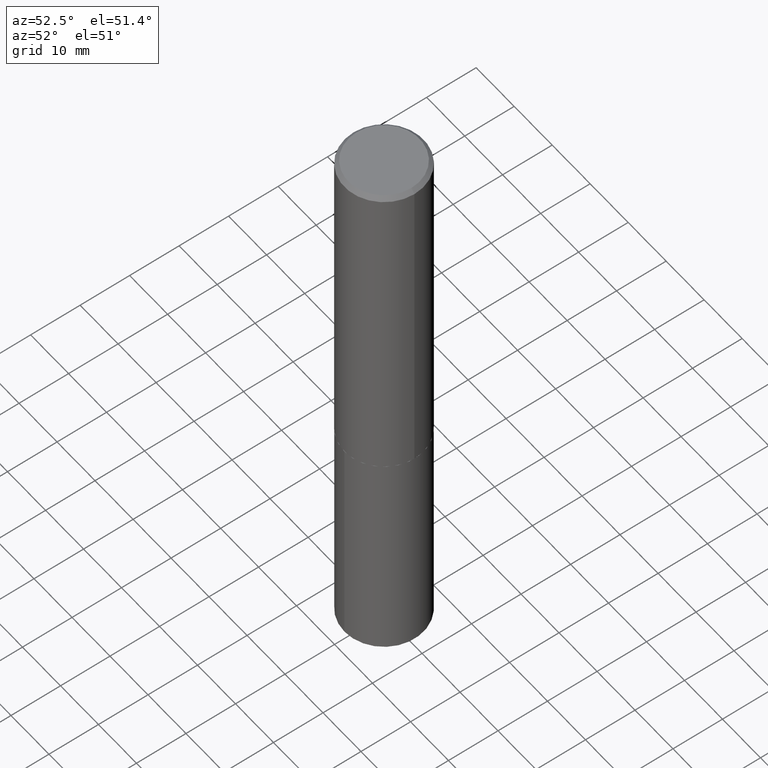
[diagram: clean part render]
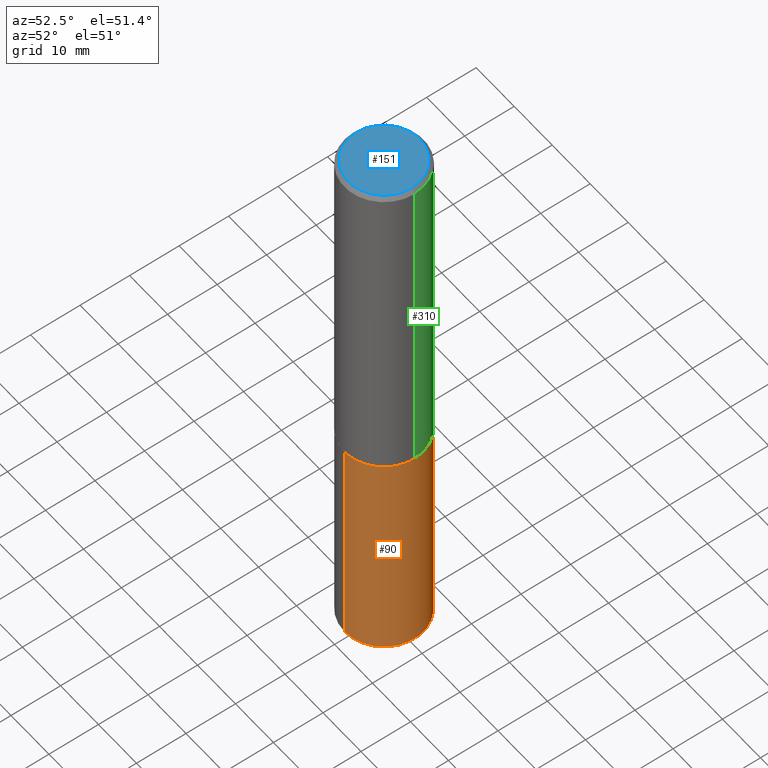
[diagram: same view with three faces highlighted in distinct colors, each labeled with its STEP entity id]
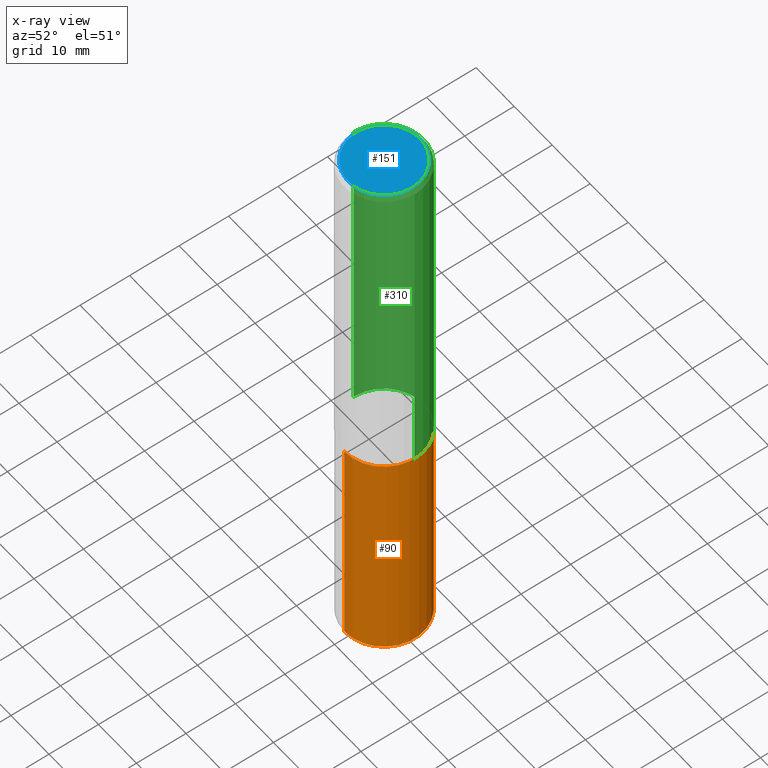
[diagram: x-ray of the same camera — body ghosted, the three highlighted faces saturated]
A machine part, auxiliary view with three faces highlighted in distinct colors.
The next image is the same camera in x-ray (body ghosted, the three faces saturated) — at least one of them is partly hidden behind the body in this view.
Their STEP definitions:

[orange] entity #90 — the highlighted cylindrical surface (partial cylindrical patch) has radius 7.9997 mm, axis along (-0, 0, 1).
#33 = VERTEX_POINT ( 'NONE', #100 ) ;
#34 = CIRCLE ( 'NONE', #84, 0.3149500000000000077 ) ;
#50 = LINE ( 'NONE', #271, #287 ) ;
#59 = ORIENTED_EDGE ( 'NONE', *, *, #268, .F. ) ;
#71 = DIRECTION ( 'NONE',  ( -6.982962677686265922E-15, -1.000000000000000000, 3.469564049740292770E-15 ) ) ;
#73 = DIRECTION ( 'NONE',  ( -6.982962677686265922E-15, -1.000000000000000000, 3.469564049740292770E-15 ) ) ;
#76 = FACE_OUTER_BOUND ( 'NONE', #258, .T. ) ;
#78 = CARTESIAN_POINT ( 'NONE',  ( 2.237854346276523548E-15, 0.3149499999999842426, -4.527600000000001401 ) ) ;
#84 = AXIS2_PLACEMENT_3D ( 'NONE', #184, #231, #354 ) ;
#85 = LINE ( 'NONE', #216, #97 ) ;
#90 = ADVANCED_FACE ( 'NONE', ( #76 ), #158, .T. ) ;
#97 = VECTOR ( 'NONE', #194, 39.37007874015748143 ) ;
#99 = ORIENTED_EDGE ( 'NONE', *, *, #214, .F. ) ;
#100 = CARTESIAN_POINT ( 'NONE',  ( -2.199284095337223212E-15, -0.3149500000000094446, -2.706599999999998563 ) ) ;
#118 = VERTEX_POINT ( 'NONE', #233 ) ;
#122 = ORIENTED_EDGE ( 'NONE', *, *, #240, .T. ) ;
#157 = DIRECTION ( 'NONE',  ( -2.444512680604651290E-29, 3.492850565093688912E-15, 1.000000000000000000 ) ) ;
#158 = CYLINDRICAL_SURFACE ( 'NONE', #209, 0.3149500000000000077 ) ;
#179 = AXIS2_PLACEMENT_3D ( 'NONE', #328, #269, #73 ) ;
#184 = CARTESIAN_POINT ( 'NONE',  ( 6.618905870820689755E-29, -9.450043391712855461E-15, -2.706599999999999451 ) ) ;
#186 = CARTESIAN_POINT ( 'NONE',  ( 6.618905870820689755E-29, -9.450043391712855461E-15, -2.706599999999999451 ) ) ;
#192 = EDGE_CURVE ( 'NONE', #118, #290, #279, .T. ) ;
#194 = DIRECTION ( 'NONE',  ( -2.444512680604651010E-29, 3.492850565093688518E-15, 1.000000000000000000 ) ) ;
#209 = AXIS2_PLACEMENT_3D ( 'NONE', #186, #157, #71 ) ;
#214 = EDGE_CURVE ( 'NONE', #33, #259, #34, .T. ) ;
#216 = CARTESIAN_POINT ( 'NONE',  ( 2.237854346276501066E-15, 0.3149499999999905708, -2.706600000000000783 ) ) ;
#231 = DIRECTION ( 'NONE',  ( -2.444512680604651290E-29, 3.492850565093688912E-15, 1.000000000000000000 ) ) ;
#233 = CARTESIAN_POINT ( 'NONE',  ( -2.199284095337178641E-15, -0.3149500000000157729, -4.527599999999999625 ) ) ;
#240 = EDGE_CURVE ( 'NONE', #290, #259, #85, .T. ) ;
#258 = EDGE_LOOP ( 'NONE', ( #293, #122, #99, #59 ) ) ;
#259 = VERTEX_POINT ( 'NONE', #363 ) ;
#268 = EDGE_CURVE ( 'NONE', #118, #33, #50, .T. ) ;
#269 = DIRECTION ( 'NONE',  ( -2.444512680604651290E-29, 3.492850565093688912E-15, 1.000000000000000000 ) ) ;
#271 = CARTESIAN_POINT ( 'NONE',  ( -2.199284095337223212E-15, -0.3149500000000094446, -2.706599999999998563 ) ) ;
#279 = CIRCLE ( 'NONE', #179, 0.3149500000000000077 ) ;
#287 = VECTOR ( 'NONE', #338, 39.37007874015748143 ) ;
#290 = VERTEX_POINT ( 'NONE', #78 ) ;
#293 = ORIENTED_EDGE ( 'NONE', *, *, #192, .T. ) ;
#328 = CARTESIAN_POINT ( 'NONE',  ( 1.107036346220176247E-28, -1.581052427074846768E-14, -4.527600000000000513 ) ) ;
#338 = DIRECTION ( 'NONE',  ( -2.444512680604651010E-29, 3.492850565093688518E-15, 1.000000000000000000 ) ) ;
#354 = DIRECTION ( 'NONE',  ( -6.982962677686265922E-15, -1.000000000000000000, 3.469564049740292770E-15 ) ) ;
#363 = CARTESIAN_POINT ( 'NONE',  ( 2.237854346276545636E-15, 0.3149499999999905708, -2.706600000000000783 ) ) ;

[blue] entity #151 — the highlighted planar face has unit normal (0, -0, -1).
#5 = AXIS2_PLACEMENT_3D ( 'NONE', #272, #296, #136 ) ;
#31 = EDGE_CURVE ( 'NONE', #225, #232, #196, .T. ) ;
#46 = DIRECTION ( 'NONE',  ( -2.445468806185136597E-29, 3.491481338843145583E-15, 1.000000000000000000 ) ) ;
#74 = CARTESIAN_POINT ( 'NONE',  ( -1.178467787315321149E-46, 1.682539673960460649E-32, 4.818985154644839761E-18 ) ) ;
#103 = DIRECTION ( 'NONE',  ( 1.000000000000000000, -6.982962677686267499E-15, 4.876309930827607477E-29 ) ) ;
#113 = AXIS2_PLACEMENT_3D ( 'NONE', #74, #46, #103 ) ;
#132 = EDGE_CURVE ( 'NONE', #232, #225, #252, .T. ) ;
#136 = DIRECTION ( 'NONE',  ( 1.000000000000000000, -6.982962677686267499E-15, 4.876309930827607477E-29 ) ) ;
#141 = CARTESIAN_POINT ( 'NONE',  ( -0.2837000000000000077, 2.035620907579017403E-15, 4.818985154630794339E-18 ) ) ;
#151 = ADVANCED_FACE ( 'NONE', ( #161 ), #241, .F. ) ;
#161 = FACE_OUTER_BOUND ( 'NONE', #283, .T. ) ;
#174 = ORIENTED_EDGE ( 'NONE', *, *, #132, .T. ) ;
#191 = CARTESIAN_POINT ( 'NONE',  ( 0.2837000000000000077, -2.108072959102388127E-15, 4.818985154659137865E-18 ) ) ;
#196 = CIRCLE ( 'NONE', #5, 0.2837000000000000077 ) ;
#225 = VERTEX_POINT ( 'NONE', #191 ) ;
#232 = VERTEX_POINT ( 'NONE', #141 ) ;
#236 = CARTESIAN_POINT ( 'NONE',  ( -5.892338936576605744E-47, 8.412698369802303245E-33, 2.409492577322419881E-18 ) ) ;
#241 = PLANE ( 'NONE',  #312 ) ;
#252 = CIRCLE ( 'NONE', #113, 0.2837000000000000077 ) ;
#272 = CARTESIAN_POINT ( 'NONE',  ( -1.178467787315321149E-46, 1.682539673960460649E-32, 4.818985154644839761E-18 ) ) ;
#283 = EDGE_LOOP ( 'NONE', ( #174, #350 ) ) ;
#296 = DIRECTION ( 'NONE',  ( -2.445468806185136597E-29, 3.491481338843145583E-15, 1.000000000000000000 ) ) ;
#298 = DIRECTION ( 'NONE',  ( 2.438088387897960049E-29, -3.491481338843145188E-15, -1.000000000000000000 ) ) ;
#312 = AXIS2_PLACEMENT_3D ( 'NONE', #236, #298, #347 ) ;
#347 = DIRECTION ( 'NONE',  ( -1.000000000000000000, 6.982962677686265922E-15, -4.876176775795935793E-29 ) ) ;
#350 = ORIENTED_EDGE ( 'NONE', *, *, #31, .T. ) ;

[green] entity #310 — the highlighted cylindrical surface (partial cylindrical patch) has radius 7.9997 mm, axis along (-0, 0, 1).
#23 = EDGE_CURVE ( 'NONE', #64, #61, #353, .T. ) ;
#24 = DIRECTION ( 'NONE',  ( -2.445468806185136597E-29, 3.491481338843145583E-15, 1.000000000000000000 ) ) ;
#41 = DIRECTION ( 'NONE',  ( -2.445468806185136877E-29, 3.491481338843145188E-15, 1.000000000000000000 ) ) ;
#43 = CARTESIAN_POINT ( 'NONE',  ( 7.642090019328594780E-31, -1.091087918388489034E-16, -0.03125000000000017347 ) ) ;
#49 = DIRECTION ( 'NONE',  ( 1.000000000000000000, -6.982962677686265922E-15, 4.876176775795935232E-29 ) ) ;
#61 = VERTEX_POINT ( 'NONE', #105 ) ;
#64 = VERTEX_POINT ( 'NONE', #208 ) ;
#67 = ORIENTED_EDGE ( 'NONE', *, *, #23, .T. ) ;
#102 = CIRCLE ( 'NONE', #154, 0.3149500000000000077 ) ;
#105 = CARTESIAN_POINT ( 'NONE',  ( -0.3149500000000000077, -2.540848875164704755E-15, -0.03125000000000017347 ) ) ;
#106 = CYLINDRICAL_SURFACE ( 'NONE', #173, 0.3149500000000001743 ) ;
#107 = VECTOR ( 'NONE', #360, 39.37007874015748143 ) ;
#108 = VECTOR ( 'NONE', #41, 39.37007874015748143 ) ;
#109 = CARTESIAN_POINT ( 'NONE',  ( 6.617683136417595833E-29, -9.448297651043434746E-15, -2.706099999999999284 ) ) ;
#125 = EDGE_CURVE ( 'NONE', #198, #170, #131, .T. ) ;
#129 = AXIS2_PLACEMENT_3D ( 'NONE', #109, #24, #248 ) ;
#131 = LINE ( 'NONE', #356, #107 ) ;
#140 = FACE_OUTER_BOUND ( 'NONE', #251, .T. ) ;
#150 = ORIENTED_EDGE ( 'NONE', *, *, #188, .F. ) ;
#152 = ORIENTED_EDGE ( 'NONE', *, *, #125, .F. ) ;
#154 = AXIS2_PLACEMENT_3D ( 'NONE', #43, #330, #325 ) ;
#170 = VERTEX_POINT ( 'NONE', #322 ) ;
#173 = AXIS2_PLACEMENT_3D ( 'NONE', #187, #304, #49 ) ;
#178 = ORIENTED_EDGE ( 'NONE', *, *, #362, .T. ) ;
#181 = CARTESIAN_POINT ( 'NONE',  ( 0.3149500000000002298, -1.164758174638072619E-14, -2.706099999999999284 ) ) ;
#187 = CARTESIAN_POINT ( 'NONE',  ( 0.000000000000000000, 0.000000000000000000, 0.000000000000000000 ) ) ;
#188 = EDGE_CURVE ( 'NONE', #170, #61, #102, .T. ) ;
#198 = VERTEX_POINT ( 'NONE', #181 ) ;
#207 = CARTESIAN_POINT ( 'NONE',  ( -0.3149500000000001743, 2.237854346276436774E-15, -1.549218606675783237E-29 ) ) ;
#208 = CARTESIAN_POINT ( 'NONE',  ( -0.3149500000000002298, -7.210443304766998761E-15, -2.706099999999999284 ) ) ;
#248 = DIRECTION ( 'NONE',  ( 1.000000000000000000, -6.982962677686264344E-15, 0.000000000000000000 ) ) ;
#251 = EDGE_LOOP ( 'NONE', ( #178, #67, #150, #152 ) ) ;
#304 = DIRECTION ( 'NONE',  ( -2.445468806185136597E-29, 3.491481338843145583E-15, 1.000000000000000000 ) ) ;
#310 = ADVANCED_FACE ( 'NONE', ( #140 ), #106, .T. ) ;
#322 = CARTESIAN_POINT ( 'NONE',  ( 0.3149500000000000077, -2.308392887176138577E-15, -0.03125000000000017347 ) ) ;
#325 = DIRECTION ( 'NONE',  ( 1.000000000000000000, -6.982962677686266711E-15, 0.000000000000000000 ) ) ;
#330 = DIRECTION ( 'NONE',  ( -2.445468806185136597E-29, 3.491481338843145583E-15, 1.000000000000000000 ) ) ;
#353 = LINE ( 'NONE', #207, #108 ) ;
#356 = CARTESIAN_POINT ( 'NONE',  ( 0.3149500000000001743, -2.199284095337290660E-15, 1.535751875536930690E-29 ) ) ;
#360 = DIRECTION ( 'NONE',  ( -2.445468806185136877E-29, 3.491481338843145188E-15, 1.000000000000000000 ) ) ;
#361 = CIRCLE ( 'NONE', #129, 0.3149500000000002298 ) ;
#362 = EDGE_CURVE ( 'NONE', #198, #64, #361, .T. ) ;